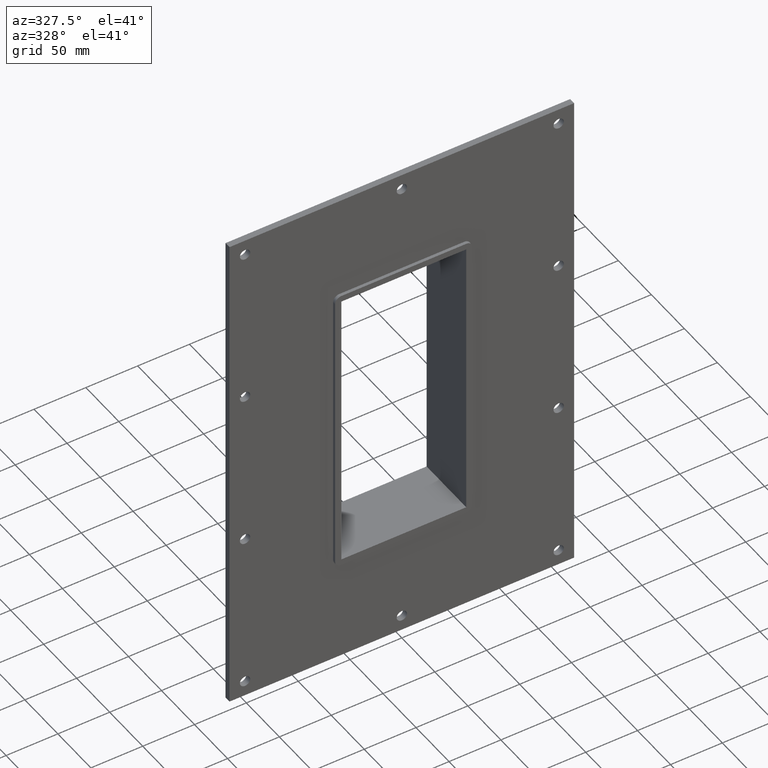
[diagram: clean part render]
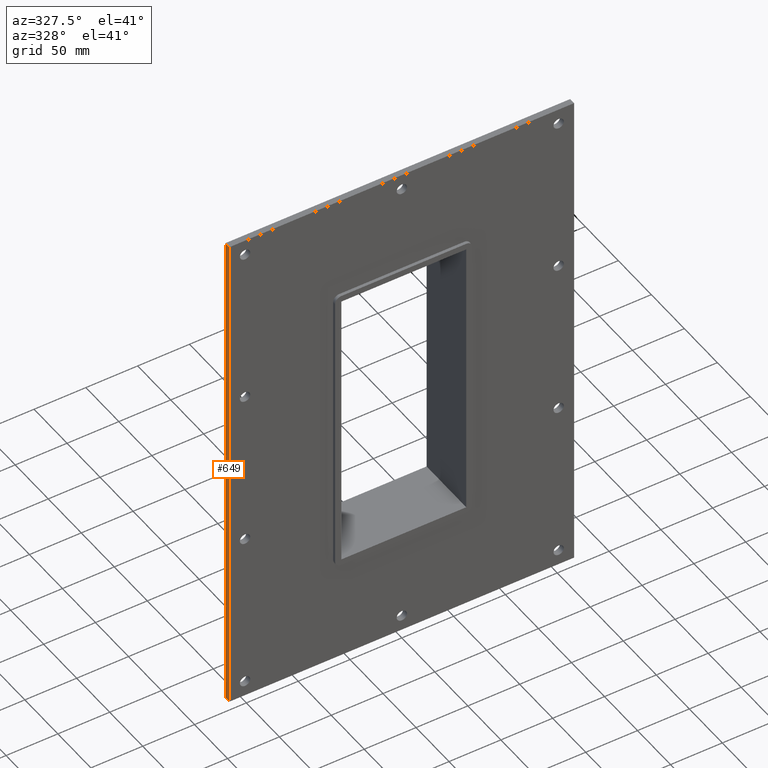
[diagram: same view with one face highlighted and labeled with its STEP entity id]
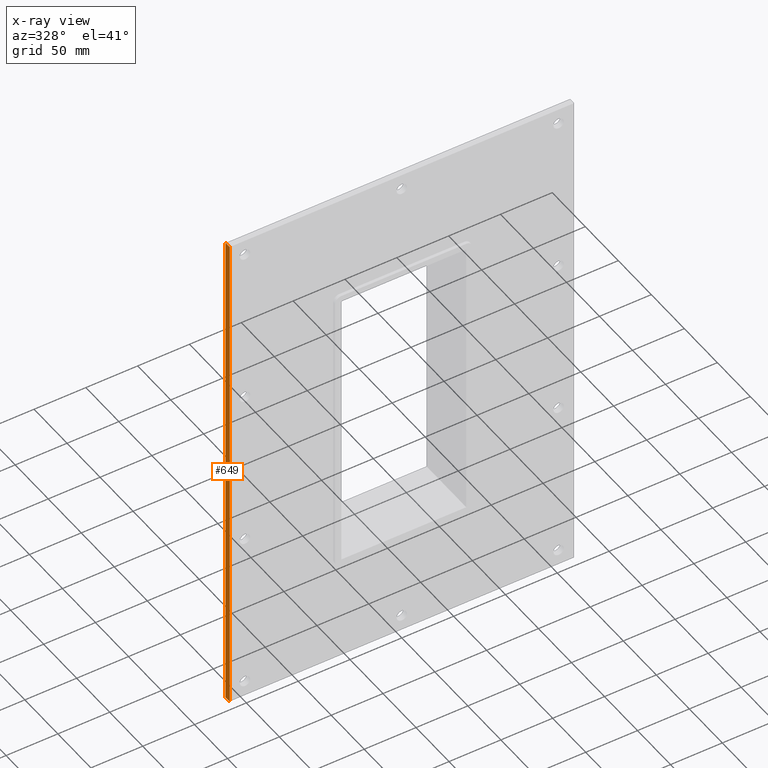
[diagram: x-ray of the same camera — body ghosted, the highlighted face saturated]
A machine part, auxiliary view. The second image highlights one B-rep face of the part: STEP entity #649.
The next image is the same camera in x-ray: the body ghosted, the highlighted face saturated — about 0% of this face is hidden behind the body in this view.
In plain terms, the highlighted planar face has unit normal (-1, 0, 0).
Its self-contained STEP definition (entity closure, byte-faithful):
#353=CARTESIAN_POINT('',(-166.25,6.000000000000001,245.0));
#354=VERTEX_POINT('',#353);
#371=CARTESIAN_POINT('',(-166.25,6.000000000000001,-244.99999999999994));
#372=VERTEX_POINT('',#371);
#379=CARTESIAN_POINT('',(-166.25,6.000000000000001,-244.99999999999994));
#380=DIRECTION('',(0.0,0.0,1.0));
#381=VECTOR('',#380,489.99999999999994);
#382=LINE('',#379,#381);
#383=EDGE_CURVE('',#372,#354,#382,.T.);
#493=CARTESIAN_POINT('',(-166.25,0.0,245.0));
#494=VERTEX_POINT('',#493);
#503=CARTESIAN_POINT('',(-166.25,0.0,-244.99999999999994));
#504=VERTEX_POINT('',#503);
#505=CARTESIAN_POINT('',(-166.25,0.0,-244.99999999999994));
#506=DIRECTION('',(0.0,0.0,1.0));
#507=VECTOR('',#506,489.99999999999994);
#508=LINE('',#505,#507);
#509=EDGE_CURVE('',#504,#494,#508,.T.);
#628=CARTESIAN_POINT('',(-166.25,0.0,-244.99999999999994));
#629=DIRECTION('',(-1.0,0.0,0.0));
#630=DIRECTION('',(0.0,0.0,1.0));
#631=AXIS2_PLACEMENT_3D('',#628,#629,#630);
#632=PLANE('',#631);
#633=ORIENTED_EDGE('',*,*,#509,.T.);
#634=CARTESIAN_POINT('',(-166.25,0.0,245.0));
#635=DIRECTION('',(0.0,1.0,0.0));
#636=VECTOR('',#635,6.000000000000001);
#637=LINE('',#634,#636);
#638=EDGE_CURVE('',#494,#354,#637,.T.);
#639=ORIENTED_EDGE('',*,*,#638,.T.);
#640=ORIENTED_EDGE('',*,*,#383,.F.);
#641=CARTESIAN_POINT('',(-166.25,0.0,-244.99999999999994));
#642=DIRECTION('',(0.0,1.0,0.0));
#643=VECTOR('',#642,6.000000000000001);
#644=LINE('',#641,#643);
#645=EDGE_CURVE('',#504,#372,#644,.T.);
#646=ORIENTED_EDGE('',*,*,#645,.F.);
#647=EDGE_LOOP('',(#633,#639,#640,#646));
#648=FACE_OUTER_BOUND('',#647,.T.);
#649=ADVANCED_FACE('',(#648),#632,.T.);